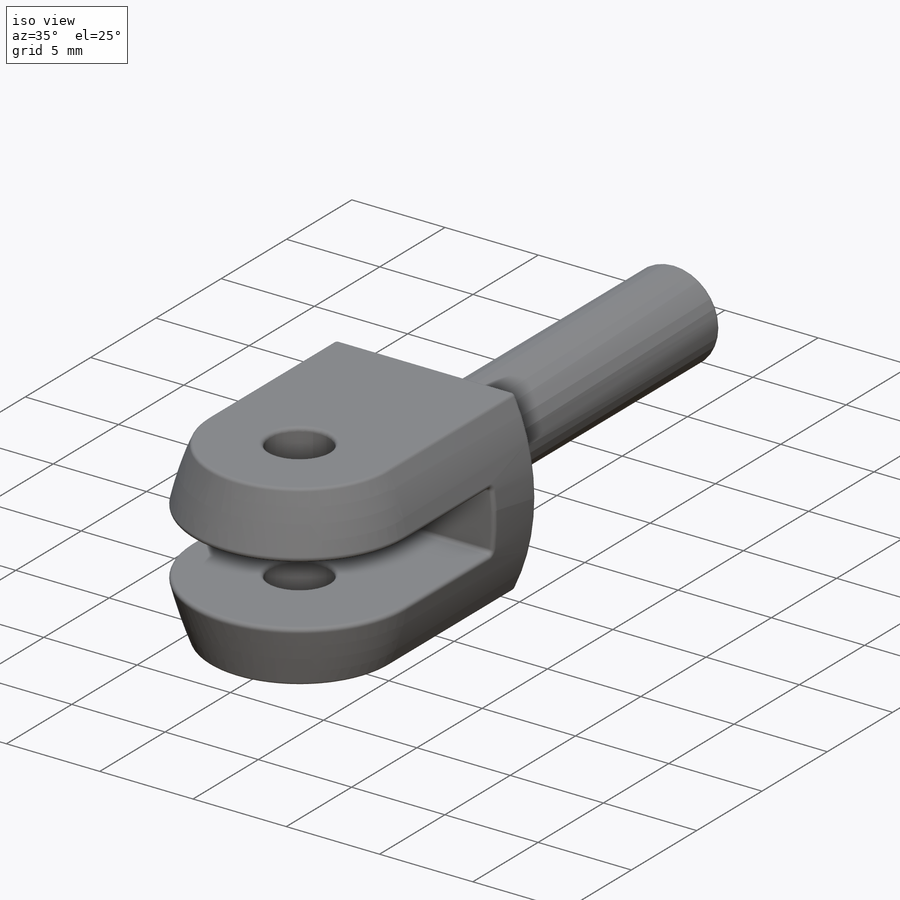
[diagram: iso view]
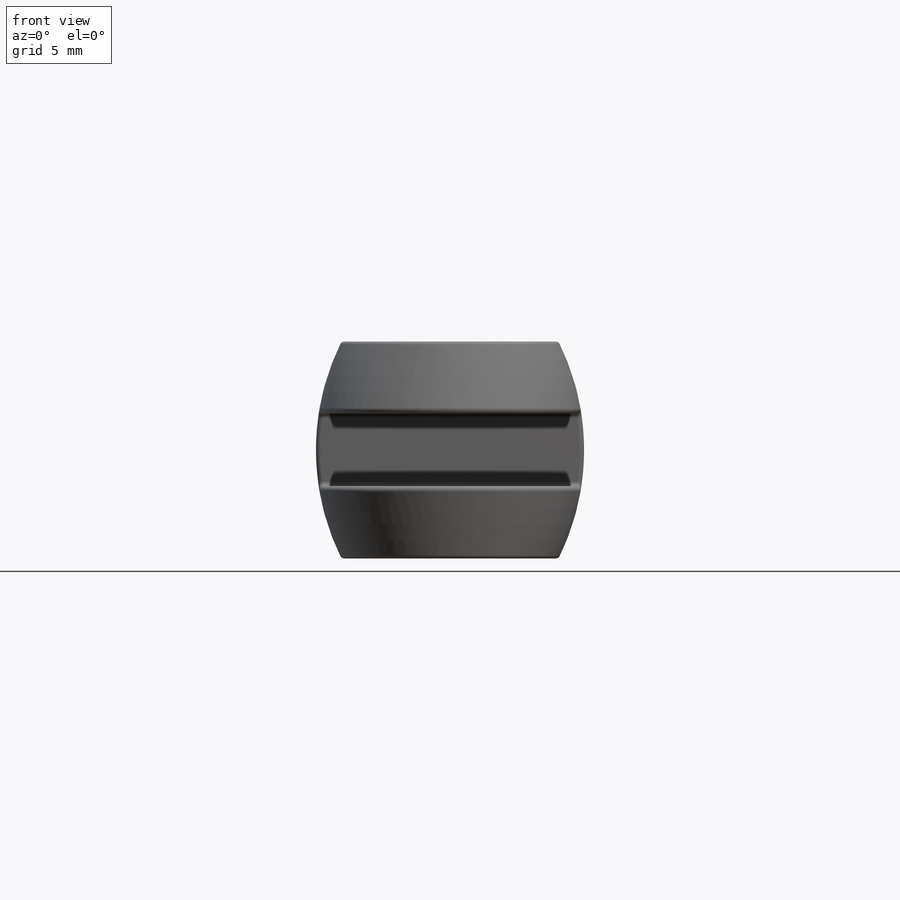
[diagram: front view]
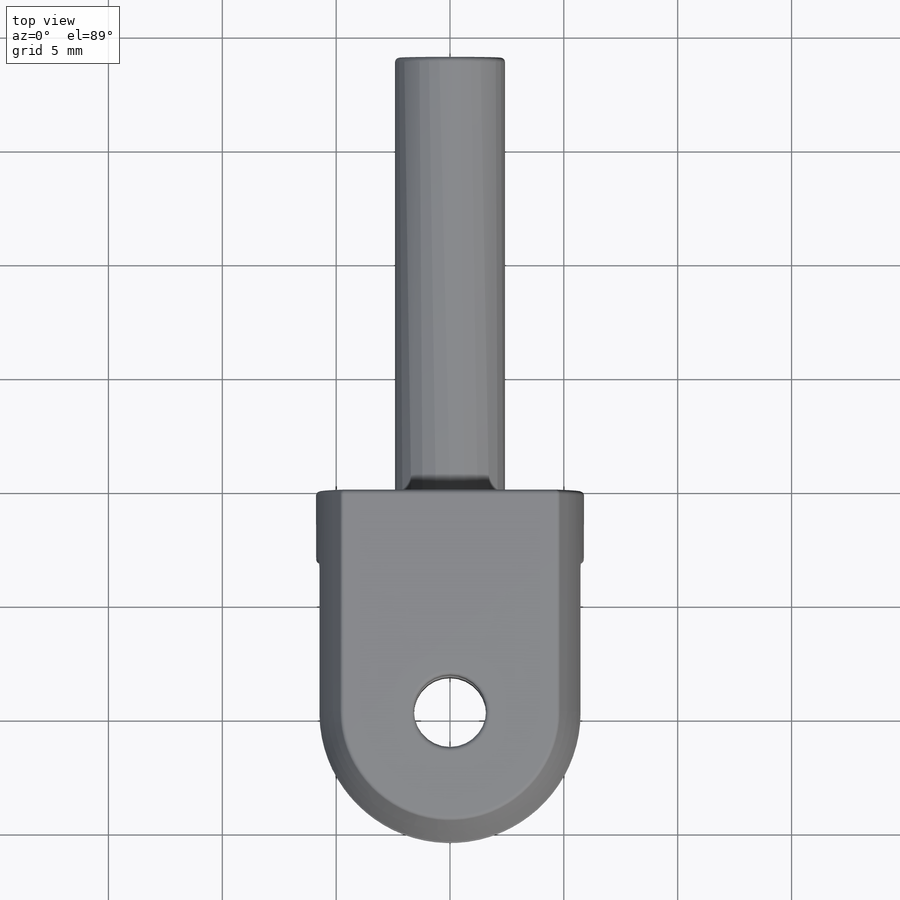
[diagram: top view]
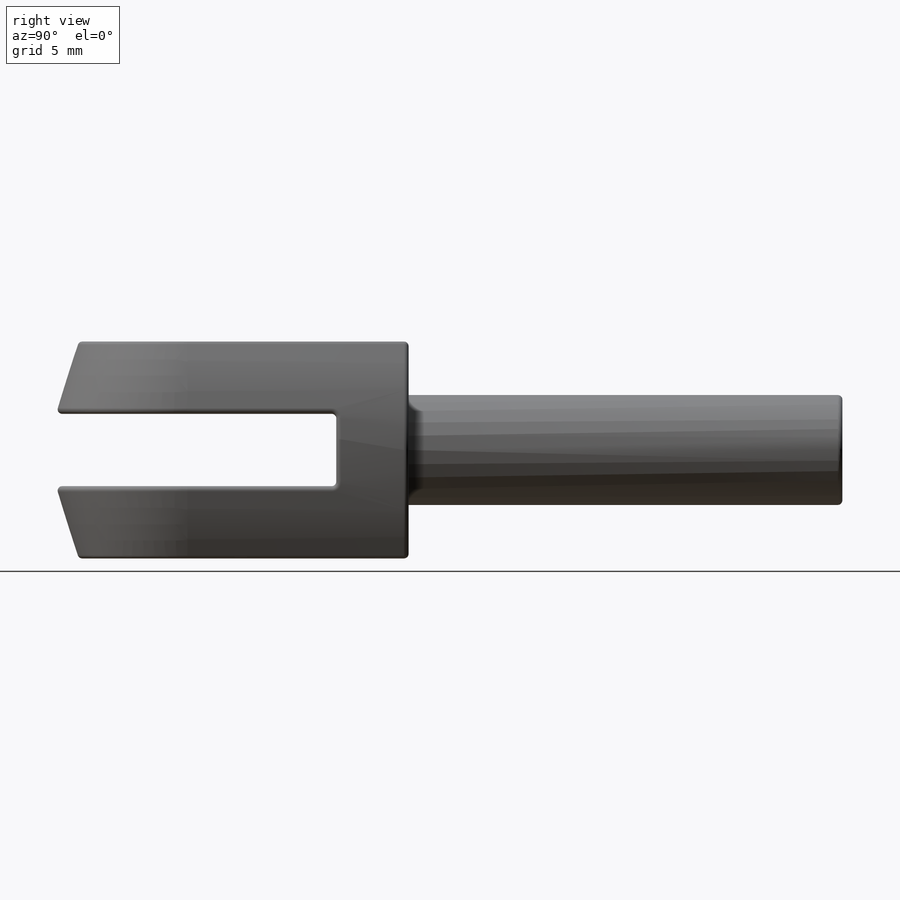
[diagram: right view]
SOLIDWORKS PART (.sldprt)
format: sldprt  version: not decoded by parser v0  size: 436,224 bytes
history: native  units: mm
features: sketch x9, extrude x4, cut_extrude x2, material x1, fillet x1 (+16 scaffold rows collapsed)
feature tree (33):
  scaffold x16  (default folders/planes/origin — collapsed)
  material  "Material <not specified>"
  sketch  "Sketch1"  dims[D5=9.525mm D1=1.5875mm D2=1.5875mm D3=3.175mm D4=3.175mm]
  extrude  "Extrude1"  Depth=14.478mm
  sketch  "Sketch2"
  extrude  "Extrude2"  Depth=3.175mm
  sketch  "Sketch3"  dims[D1=3.175mm]
  cut_extrude  "Extrude4"  [1 undecoded]
  sketch  "Sketch4"
  sketch  "Sketch5"
  sketch  "Sketch6"
  sketch  "Sketch7"
  extrude  "Loft2"  [1 undecoded]
  sketch  "Sketch9"  dims[D1=3.175mm]
  cut_extrude  "Extrude5"  [1 undecoded]
  sketch  "Sketch10"  dims[D1=4.826mm]
  extrude  "Extrude6"  Depth=19.05mm
  fillet  "Fillet1"  Radius=0.198437mm
decode coverage: 8 of 16 modeling features carry decoded parameters
note: 3 parameter values undecoded
summary: no parameter record found for 3 features
note: suppression state not decoded; provenance and decode notes live in map.json
